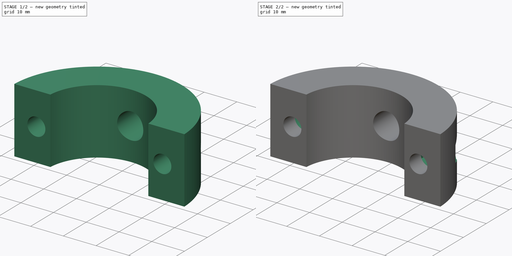
[diagram: build sequence overview — one tinted view per stage of 2, left to right]
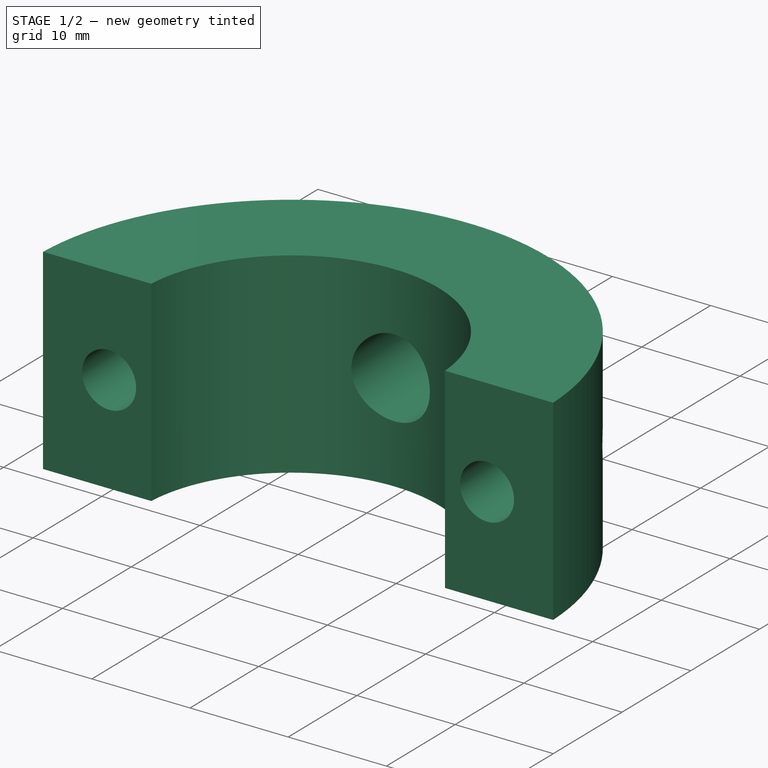
[diagram: stage 1 of 2 — iso view after this stage's code; geometry added in this stage tinted green]
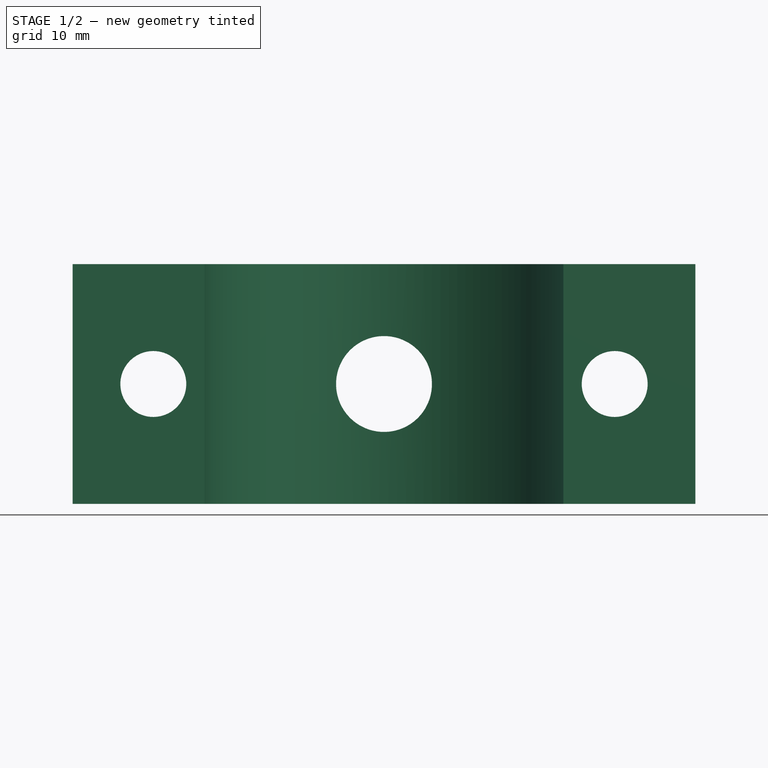
[diagram: stage 1 of 2 — front view after this stage's code; geometry added in this stage tinted green]
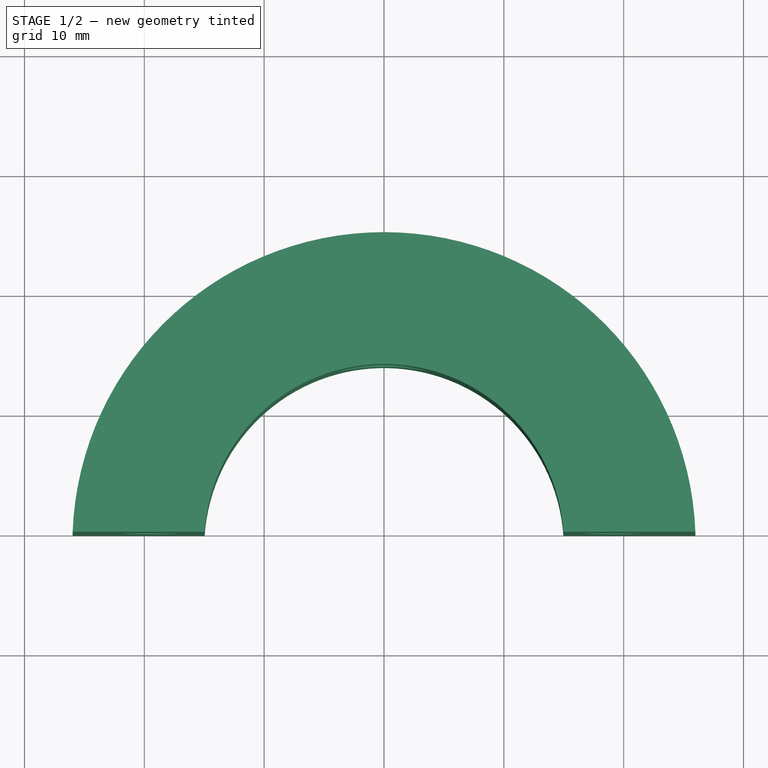
[diagram: stage 1 of 2 — top view after this stage's code; geometry added in this stage tinted green]
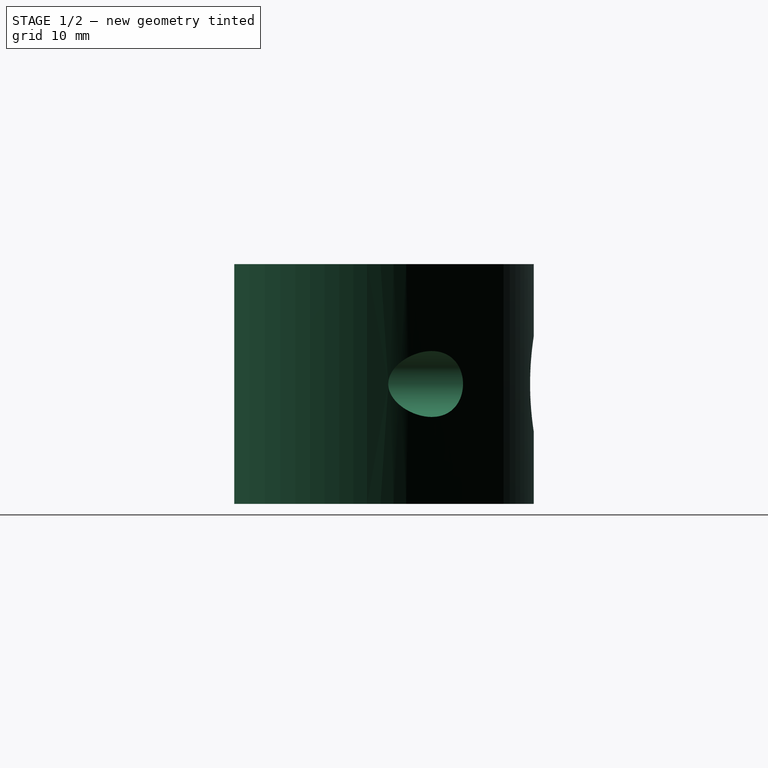
[diagram: stage 1 of 2 — right view after this stage's code; geometry added in this stage tinted green]
FCSTD DOCUMENT  (FreeCAD 1.0R39109 (Git))
Label: Landmine Adapter V2.1 Part With Hole
License: All rights reserved
LicenseURL: http://en.wikipedia.org/wiki/All_rights_reserved
objects: Sketcher::SketchObject×3, PartDesign::Pocket×2, Spreadsheet::Sheet×1, PartDesign::Pad×1, PartDesign::Plane×1, PartDesign::Body×1
note: 17 computed .brp shape members not serialized (recipe doc carries the construction recipe); baked Part::Feature solids carry a one-line shape summary decoded from their .brp

FEATURE [Sketcher::SketchObject] Sketch
  ArcFitTolerance = 1e-06
  AttachmentSupport = -> [XY_Plane]
  FullyConstrained = true
  MakeInternals = false
  MapMode = 5
  expr: Constraints[2] = Spreadsheet.gap / 2
  expr: Constraints[7] = Spreadsheet.inner_diameter
  expr: Constraints[8] = Spreadsheet.outer_diameter
  sketch-geometry (4):
    g0: ArcOfCircle CenterX=0 CenterY=-1 CenterZ=0 NormalX=0 NormalY=0 NormalZ=1 AngleXU=0 Radius=15 StartAngle=0.0667161 EndAngle=3.07488
    g1: ArcOfCircle CenterX=0 CenterY=-1 CenterZ=0 NormalX=0 NormalY=0 NormalZ=1 AngleXU=0 Radius=26 StartAngle=0.038471 EndAngle=3.10312
    g2: LineSegment StartX=-25.9808 StartY=3.3e-15 StartZ=0 EndX=-14.9666 EndY=-2.1e-15 EndZ=0
    g3: LineSegment StartX=14.9666 StartY=7e-16 StartZ=0 EndX=25.9808 EndY=-4e-16 EndZ=0
  constraints (13):
    c: Horizontal(g0,g-1)
    c: Horizontal(g0,g-1)
    c: DistanceY(g0,g-1) = 1
    c: Vertical(g0,g-1)
    c: Coincident(g1,g0)
    c: Horizontal(g1,g-1)
    c: Horizontal(g1,g-1)
    c: Diameter(g0) = 30
    c: Diameter(g1) = 52
    c: Coincident(g2,g1)
    c: Coincident(g2,g0)
    c: Coincident(g3,g0)
    c: Coincident(g3,g1)
FEATURE [Spreadsheet::Sheet] Spreadsheet
  cells = A1='inner_diameter; B1(inner_diameter)=30; A2='outer_diameter; B2(outer_diameter)=52; A3='width; B3(width)=20; A4='nut_width_across_flats; B4(nut_width_across_flats)=8.5; A5='screw_hole_diameter; B5(screw_hole_diameter)=5.5; A6='screw_head_diameter; B6(screw_head_diameter)=9.5; A7='gap; B7(gap)=2; A8='screw_nut_supporting_thickness; B8(screw_nut_supporting_thickness)=5; A9='screw_hole_inward_offset; B9(screw_hole_inward_offset)=1.25; A10='set_screw_diameter; B10(set_screw_diameter)=8
FEATURE [PartDesign::Pad] Pad
  Direction = (0,0,1)
  Length = 20
  Length2 = 10
  Profile = -> Sketch
  ReferenceAxis = -> Sketch [N_Axis]
  Suppressed = false
  Type = 0
  expr: Length = Spreadsheet.width
FEATURE [PartDesign::Plane] DatumPlane
  AttachmentOffset = pos=(-5,0,0) rot=(0,1,0;1.5708rad)
  AttachmentSupport = -> [Pad]
  Length = 62.1558
  MapMode = 4
  Placement = pos=(0,5,0) rot=(1,0,0;1.5708rad)
  ResizeMode = 0
  Width = 60.1943
  expr: .AttachmentOffset.Base.x = -Spreadsheet.screw_nut_supporting_thickness
FEATURE [Sketcher::SketchObject] Sketch001
  ArcFitTolerance = 1e-06
  AttachmentSupport = -> [Pad]
  FullyConstrained = true
  MakeInternals = false
  MapMode = 5
  Placement = pos=(0,-9.4e-15,0) rot=(1,0,0;1.5708rad)
  expr: Constraints[0] = Spreadsheet.screw_hole_diameter
  expr: Constraints[1] = Spreadsheet.width / 2
  expr: Constraints[2] = Spreadsheet.inner_diameter / 2 + (Spreadsheet.outer_diameter - Spreadsheet.inner_diameter) / 4 - Spreadsheet.screw_hole_inward_offset
  expr: Constraints[3] = Spreadsheet.screw_hole_diameter
  expr: Constraints[4] = Spreadsheet.inner_diameter / 2 + (Spreadsheet.outer_diameter - Spreadsheet.inner_diameter) / 4 - Spreadsheet.screw_hole_inward_offset
  expr: Constraints[5] = Spreadsheet.width / 2
  expr: Constraints[6] = Spreadsheet.set_screw_diameter
  expr: Constraints[8] = Spreadsheet.width / 2
  sketch-geometry (3):
    g0: Circle CenterX=-19.25 CenterY=10 CenterZ=0 NormalX=0 NormalY=0 NormalZ=1 AngleXU=0 Radius=2.75
    g1: Circle CenterX=19.25 CenterY=10 CenterZ=0 NormalX=0 NormalY=0 NormalZ=1 AngleXU=0 Radius=2.75
    g2: Circle CenterX=0 CenterY=10 CenterZ=0 NormalX=0 NormalY=0 NormalZ=1 AngleXU=0 Radius=4
  constraints (9):
    c: Diameter(g0) = 5.5
    c: DistanceY(g-1,g0) = 10
    c: DistanceX(g0,g-1) = 19.25
    c: Diameter(g1) = 5.5
    c: DistanceX(g-1,g1) = 19.25
    c: DistanceY(g-1,g1) = 10
    c: Diameter(g2) = 8
    c: Vertical(g2,g-1)
    c: DistanceY(g-1,g2) = 10
FEATURE [PartDesign::Pocket] Pocket
  BaseFeature = -> Pad
  Direction = (0,1,-2e-16)
  Length = 5
  Length2 = 5
  Profile = -> Sketch001
  ReferenceAxis = -> Sketch001 [N_Axis]
  Suppressed = false
  Type = 1
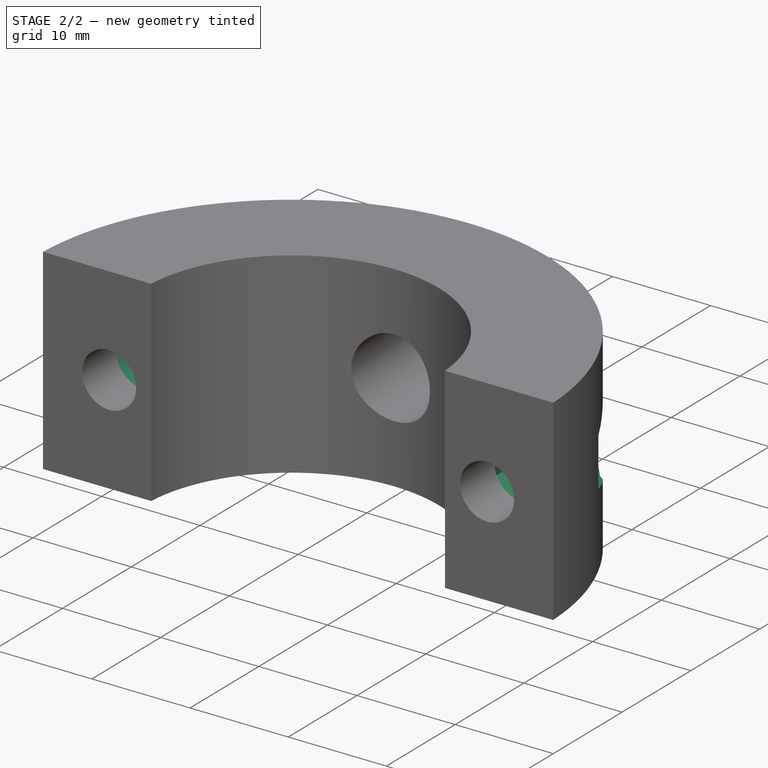
[diagram: stage 2 of 2 — iso view after this stage's code; geometry added in this stage tinted green]
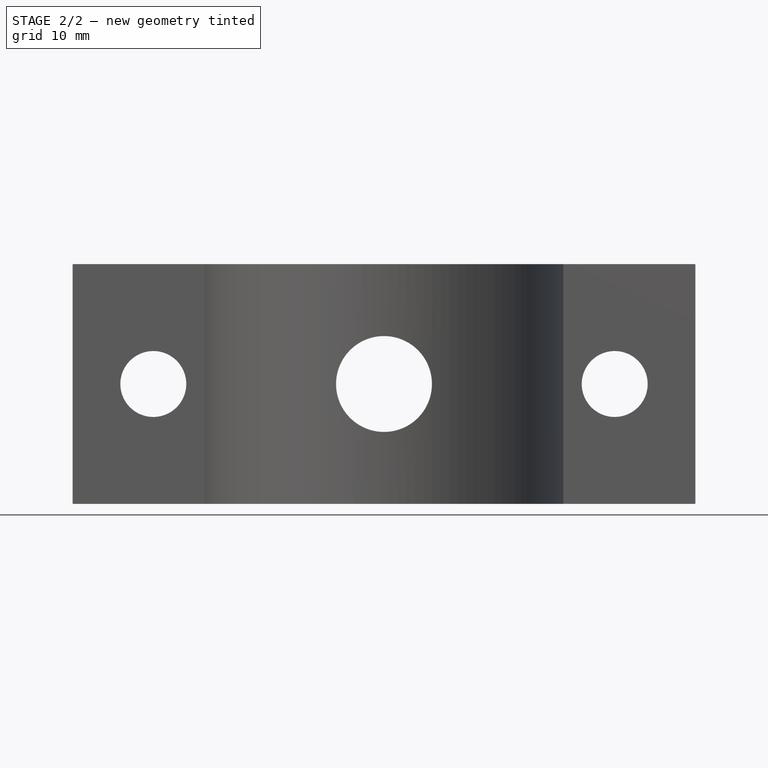
[diagram: stage 2 of 2 — front view after this stage's code; geometry added in this stage tinted green]
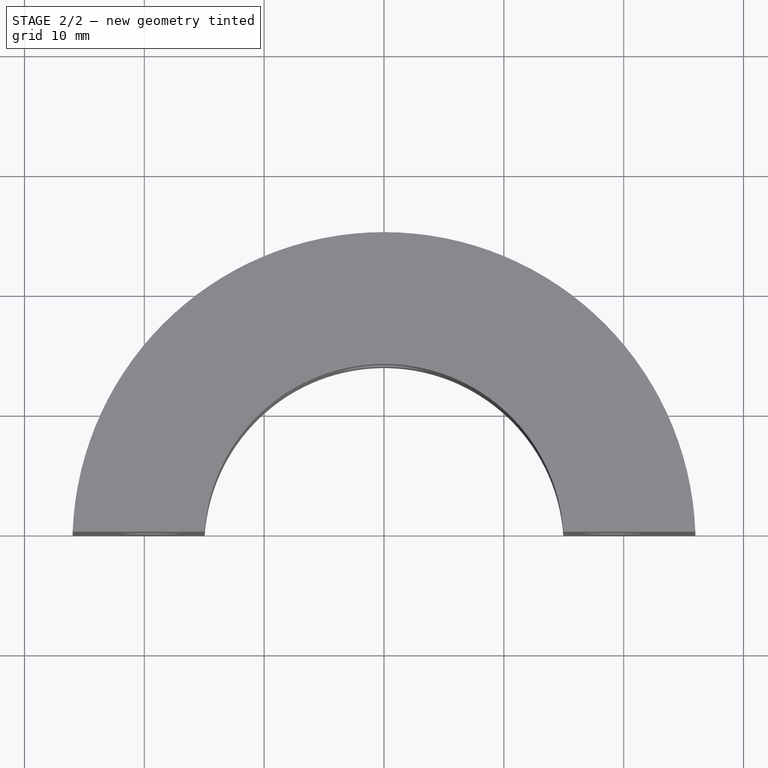
[diagram: stage 2 of 2 — top view after this stage's code; geometry added in this stage tinted green]
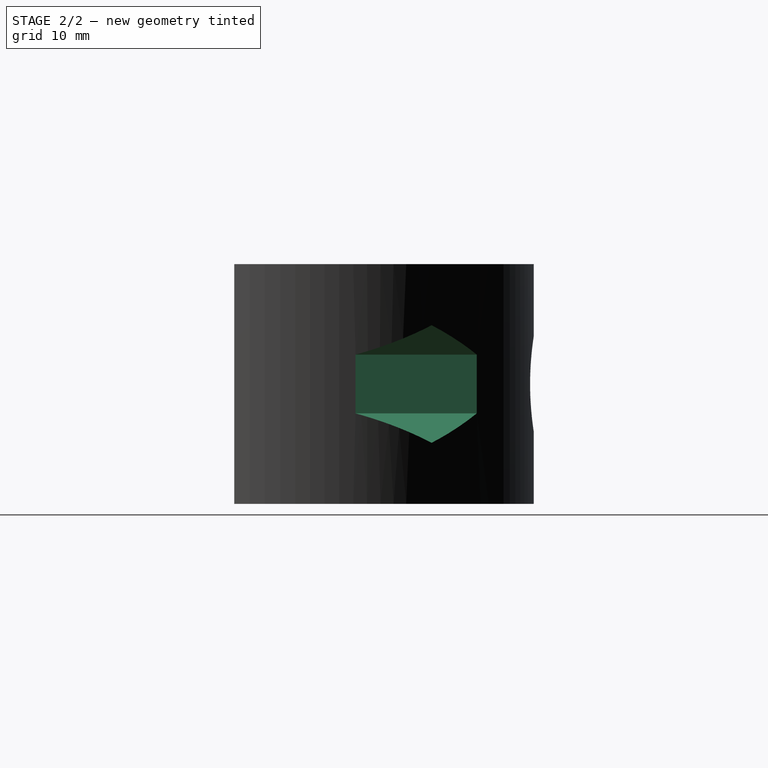
[diagram: stage 2 of 2 — right view after this stage's code; geometry added in this stage tinted green]
FEATURE [Sketcher::SketchObject] Sketch002
  ArcFitTolerance = 1e-06
  AttachmentSupport = -> [DatumPlane]
  FullyConstrained = true
  MakeInternals = false
  MapMode = 5
  Placement = pos=(0,5,0) rot=(1,0,0;1.5708rad)
  expr: Constraints[0] = Spreadsheet.screw_head_diameter
  expr: Constraints[1] = Spreadsheet.width / 2
  expr: Constraints[20] = Spreadsheet.inner_diameter / 2 + (Spreadsheet.outer_diameter - Spreadsheet.inner_diameter) / 4 - Spreadsheet.screw_hole_inward_offset
  expr: Constraints[21] = Spreadsheet.width / 2
  expr: Constraints[23] = Spreadsheet.nut_width_across_flats
  expr: Constraints[2] = Spreadsheet.inner_diameter / 2 + (Spreadsheet.outer_diameter - Spreadsheet.inner_diameter) / 4 - Spreadsheet.screw_hole_inward_offset
  sketch-geometry (8):
    g0: Circle CenterX=-19.25 CenterY=10 CenterZ=0 NormalX=0 NormalY=0 NormalZ=1 AngleXU=0 Radius=4.75
    g1: LineSegment StartX=19.25 StartY=5.09252 StartZ=0 EndX=23.5 EndY=7.54626 EndZ=0
    g2: LineSegment StartX=23.5 StartY=7.54626 StartZ=0 EndX=23.5 EndY=12.4537 EndZ=0
    g3: LineSegment StartX=23.5 StartY=12.4537 StartZ=0 EndX=19.25 EndY=14.9075 EndZ=0
    g4: LineSegment StartX=19.25 StartY=14.9075 StartZ=0 EndX=15 EndY=12.4537 EndZ=0
    g5: LineSegment StartX=15 StartY=12.4537 StartZ=0 EndX=15 EndY=7.54626 EndZ=0
    g6: LineSegment StartX=15 StartY=7.54626 StartZ=0 EndX=19.25 EndY=5.09252 EndZ=0
    g7: Circle [constr] CenterX=19.25 CenterY=10 CenterZ=0 NormalX=0 NormalY=0 NormalZ=1 AngleXU=0 Radius=4.90748
  constraints (20):
    c: Diameter(g0) = 9.5
    c: DistanceY(g-1,g0) = 10
    c: DistanceX(g0,g-1) = 19.25
    c: Coincident(g1,g2)
    c: Coincident(g2,g3)
    c: Coincident(g3,g4)
    c: Coincident(g4,g5)
    c: Coincident(g5,g6)
    c: Coincident(g6,g1)
    c: Equal(g1, g2-g6) x5
    c: PointOnObject(g1,g7)
    c: PointOnObject(g2,g7)
    c: PointOnObject(g3,g7)
    c: PointOnObject(g4,g7)
    c: PointOnObject(g5,g7)
    c: PointOnObject(g6,g7)
    c: DistanceX(g-1,g7) = 19.25
    c: DistanceY(g-1,g7) = 10
    c: Vertical(g3,g7)
    c: DistanceX(g4,g2) = 8.5
FEATURE [PartDesign::Pocket] Pocket001
  BaseFeature = -> Pocket
  Direction = (0,1,-2e-16)
  Length = 5
  Length2 = 5
  Profile = -> Sketch002
  ReferenceAxis = -> Sketch002 [N_Axis]
  Suppressed = false
  Type = 1
FEATURE [PartDesign::Body] Body
  AllowCompound = false
  Group = -> [Sketch,Pad,DatumPlane,Sketch001,Pocket,Sketch002,Pocket001]
  Origin = -> Origin
  Tip = -> Pocket001
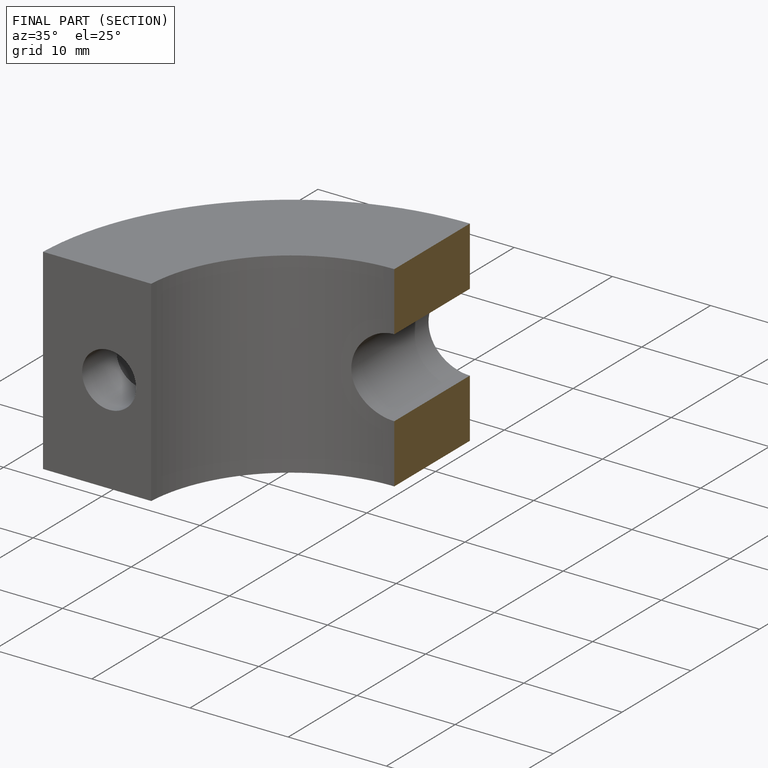
[diagram: finished part — half-section view (interior)]
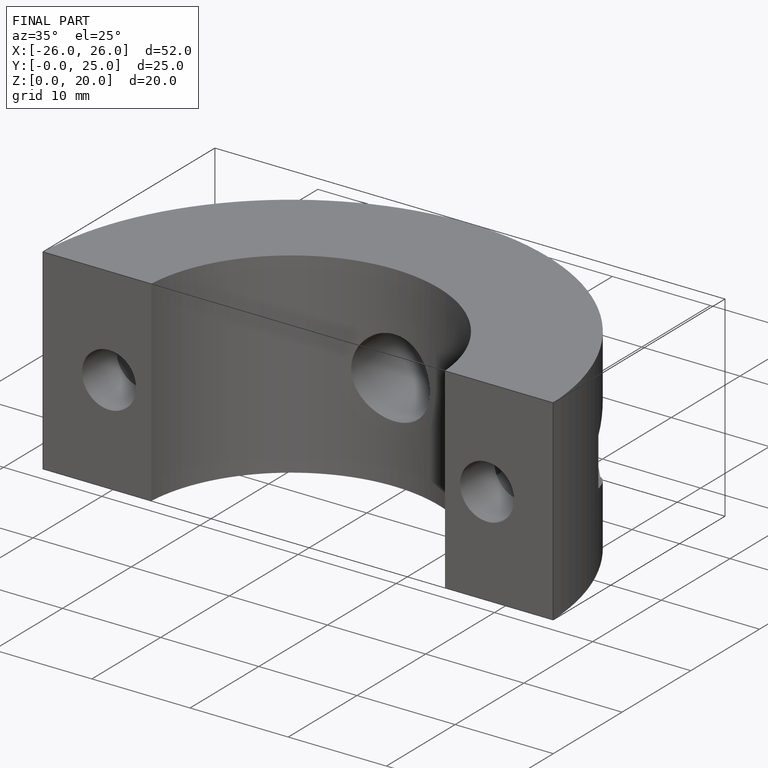
[diagram: finished part — iso view with bounding-box wireframe]
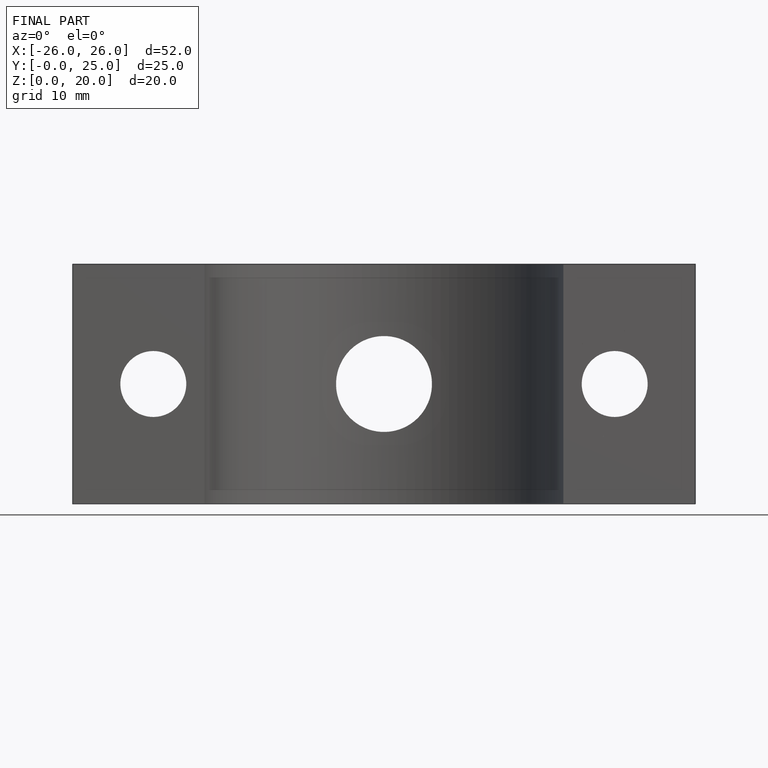
[diagram: finished part — front view with bounding-box wireframe]
